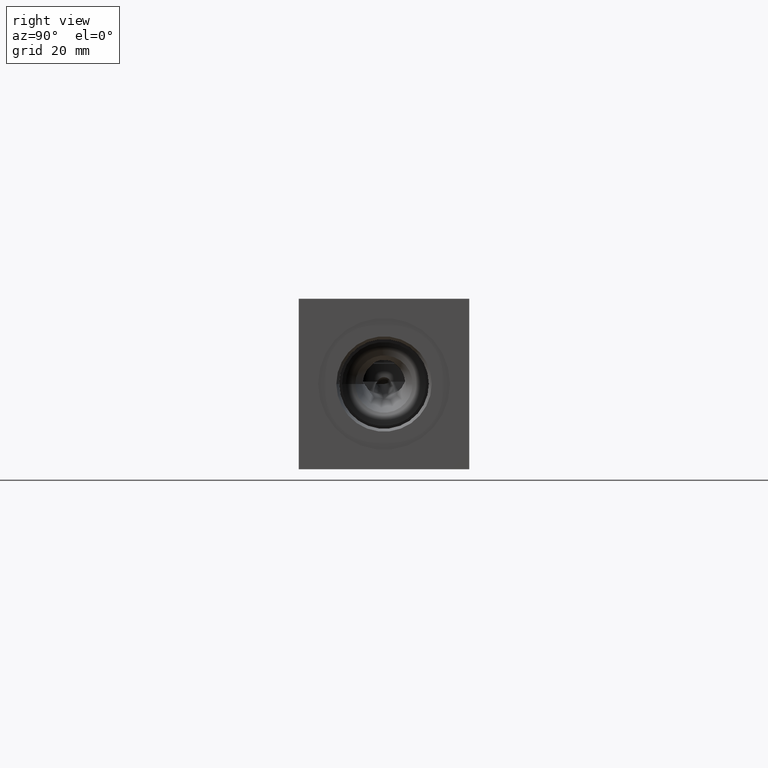
[diagram: clean part render]
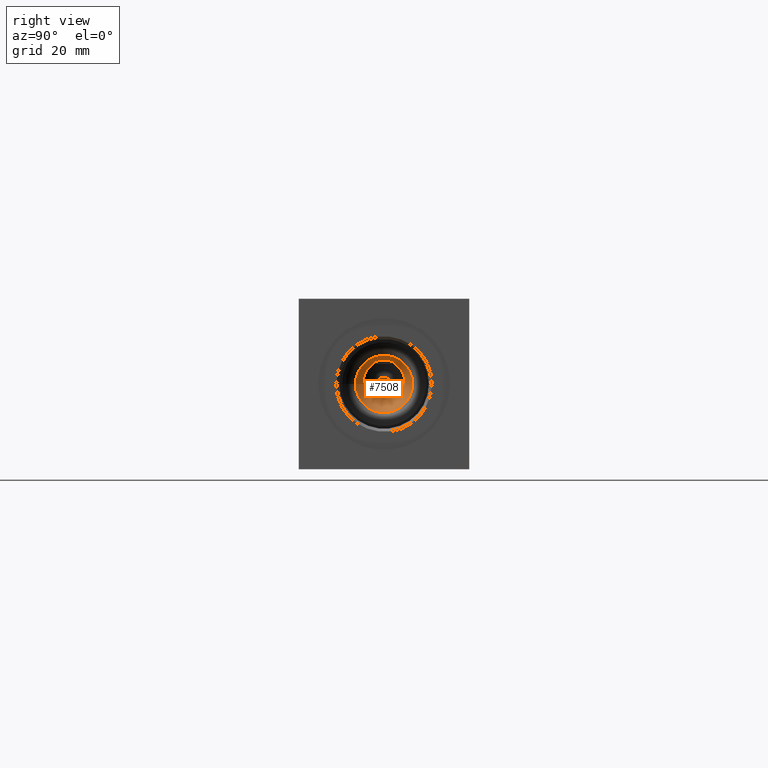
[diagram: same view with one face highlighted and labeled with its STEP entity id]
A machine part, right view. The second image highlights one B-rep face of the part: STEP entity #7508.
In plain terms, the highlighted conical surface has half-angle 15 deg.
Its self-contained STEP definition (entity closure, byte-faithful):
#19=CONICAL_SURFACE('',#7843,8.8773,0.261799387799149);
#97=CIRCLE('',#7819,10.6706221042172);
#222=FACE_BOUND('',#1304,.T.);
#446=B_SPLINE_CURVE_WITH_KNOTS('',3,(#12681,#12682,#12683,#12684),
 .UNSPECIFIED.,.F.,.F.,(4,4),(2.08399057340282,2.27941029707301),
 .UNSPECIFIED.);
#447=B_SPLINE_CURVE_WITH_KNOTS('',3,(#12686,#12687,#12688,#12689,#12690,
#12691,#12692,#12693),.UNSPECIFIED.,.F.,.F.,(4,2,2,4),(1.71928819572178,
1.98408143879271,2.29483396622874,2.51733111841793),.UNSPECIFIED.);
#448=B_SPLINE_CURVE_WITH_KNOTS('',3,(#12695,#12696,#12697,#12698),
 .UNSPECIFIED.,.F.,.F.,(4,4),(0.969717851238545,1.07709659307929),
 .UNSPECIFIED.);
#449=B_SPLINE_CURVE_WITH_KNOTS('',3,(#12700,#12701,#12702,#12703,#12704,
#12705,#12706,#12707,#12708,#12709),.UNSPECIFIED.,.F.,.F.,(4,2,2,2,4),(0.948619671142108,
0.989658449473127,1.338535489643,1.68741252981288,1.7284513081439),
 .UNSPECIFIED.);
#450=B_SPLINE_CURVE_WITH_KNOTS('',3,(#12711,#12712,#12713,#12714),
 .UNSPECIFIED.,.F.,.F.,(4,4),(2.62874377346247,2.73612251530321),
 .UNSPECIFIED.);
#451=B_SPLINE_CURVE_WITH_KNOTS('',3,(#12716,#12717,#12718,#12719,#12720,
#12721,#12722,#12723),.UNSPECIFIED.,.F.,.F.,(4,2,2,4),(0.0882553752468455,
0.310752527436033,0.621505054872067,0.886298297943),.UNSPECIFIED.);
#452=B_SPLINE_CURVE_WITH_KNOTS('',3,(#12725,#12726,#12727,#12728,#12729,
#12730,#12731,#12732,#12733,#12734,#12735,#12736,#12737,#12738,#12739,#12740),
 .UNSPECIFIED.,.F.,.F.,(4,2,2,2,2,2,2,4),(4.9302210835923,5.46971649594333,
5.67910976772348,5.88850303950362,6.05725263641342,6.22600223332322,6.56350142714282,
7.07308323323233),.UNSPECIFIED.);
#453=B_SPLINE_CURVE_WITH_KNOTS('',3,(#12742,#12743,#12744,#12745,#12746,
#12747,#12748,#12749,#12750,#12751,#12752,#12753,#12754,#12755,#12756,#12757,
#12758,#12759),.UNSPECIFIED.,.F.,.F.,(4,2,2,2,2,2,2,2,4),(0.8705508678965,
0.880554992066834,0.978724894753182,1.07615126441196,1.17357763407073,1.2710040037295,
1.36843037338828,1.46660027607462,1.47660440024496),.UNSPECIFIED.);
#454=B_SPLINE_CURVE_WITH_KNOTS('',3,(#12761,#12762,#12763,#12764),
 .UNSPECIFIED.,.F.,.F.,(4,4),(4.02932478603316,4.22685272304285),
 .UNSPECIFIED.);
#455=B_SPLINE_CURVE_WITH_KNOTS('',3,(#12767,#12768,#12769,#12770,#12771,
#12772,#12773,#12774,#12775,#12776,#12777,#12778,#12779,#12780,#12781,#12782),
 .UNSPECIFIED.,.F.,.F.,(4,2,2,2,2,2,2,4),(2.27941029707301,2.59357237949233,
2.93107157331193,3.09982117022173,3.26857076713153,3.47796403891167,3.68735731069182,
4.02932478603316),.UNSPECIFIED.);
#456=B_SPLINE_CURVE_WITH_KNOTS('',3,(#12785,#12786,#12787,#12788,#12789,
#12790,#12791,#12792,#12793,#12794,#12795,#12796),.UNSPECIFIED.,.F.,.F.,
(4,2,2,2,2,4),(0.,0.00953028627284394,0.0190605725456879,0.0310259345487697,
0.0353353979949069,0.0385292272556848),.UNSPECIFIED.);
#457=B_SPLINE_CURVE_WITH_KNOTS('',3,(#12797,#12798,#12799,#12800,#12801,
#12802,#12803,#12804,#12805,#12806,#12807,#12808,#12809,#12810,#12811,#12812,
#12813,#12814,#12815,#12816,#12817,#12818,#12819,#12820,#12821,#12822,#12823,
#12824),.UNSPECIFIED.,.F.,.F.,(4,2,2,2,2,2,2,2,2,2,2,2,2,4),(0.0385292272556848,
0.0417230565164627,0.0460325199625999,0.0579978819656817,0.0675281682385257,
0.0770584545113696,0.0896268539789951,0.102195253446621,0.109982875253717,
0.117770497060813,0.125558118867909,0.133345740675005,0.145914140142631,
0.158482539610256),.UNSPECIFIED.);
#887=FACE_OUTER_BOUND('',#1303,.T.);
#1303=EDGE_LOOP('',(#6353,#6354,#6355,#6356,#6357,#6358,#6359,#6360,#6361,
#6362,#6363,#6364,#6365,#6366,#6367));
#1304=EDGE_LOOP('',(#6368,#6369));
#2044=LINE('',#12679,#2757);
#2045=LINE('',#12766,#2758);
#2757=VECTOR('',#9174,8.8773);
#2758=VECTOR('',#9175,8.8773);
#3399=VERTEX_POINT('',#12630);
#3413=VERTEX_POINT('',#12678);
#3414=VERTEX_POINT('',#12680);
#3415=VERTEX_POINT('',#12685);
#3416=VERTEX_POINT('',#12694);
#3417=VERTEX_POINT('',#12699);
#3418=VERTEX_POINT('',#12710);
#3419=VERTEX_POINT('',#12715);
#3420=VERTEX_POINT('',#12724);
#3421=VERTEX_POINT('',#12741);
#3422=VERTEX_POINT('',#12760);
#3423=VERTEX_POINT('',#12765);
#3424=VERTEX_POINT('',#12783);
#3425=VERTEX_POINT('',#12784);
#4396=EDGE_CURVE('',#3399,#3399,#97,.T.);
#4419=EDGE_CURVE('',#3399,#3413,#2044,.T.);
#4420=EDGE_CURVE('',#3414,#3413,#446,.T.);
#4421=EDGE_CURVE('',#3415,#3414,#447,.T.);
#4422=EDGE_CURVE('',#3415,#3416,#448,.T.);
#4423=EDGE_CURVE('',#3417,#3416,#449,.T.);
#4424=EDGE_CURVE('',#3417,#3418,#450,.T.);
#4425=EDGE_CURVE('',#3419,#3418,#451,.T.);
#4426=EDGE_CURVE('',#3420,#3419,#452,.T.);
#4427=EDGE_CURVE('',#3421,#3420,#453,.T.);
#4428=EDGE_CURVE('',#3422,#3421,#454,.T.);
#4429=EDGE_CURVE('',#3422,#3423,#2045,.T.);
#4430=EDGE_CURVE('',#3413,#3422,#455,.T.);
#4431=EDGE_CURVE('',#3424,#3425,#456,.T.);
#4432=EDGE_CURVE('',#3425,#3424,#457,.T.);
#6353=ORIENTED_EDGE('',*,*,#4396,.T.);
#6354=ORIENTED_EDGE('',*,*,#4419,.T.);
#6355=ORIENTED_EDGE('',*,*,#4420,.F.);
#6356=ORIENTED_EDGE('',*,*,#4421,.F.);
#6357=ORIENTED_EDGE('',*,*,#4422,.T.);
#6358=ORIENTED_EDGE('',*,*,#4423,.F.);
#6359=ORIENTED_EDGE('',*,*,#4424,.T.);
#6360=ORIENTED_EDGE('',*,*,#4425,.F.);
#6361=ORIENTED_EDGE('',*,*,#4426,.F.);
#6362=ORIENTED_EDGE('',*,*,#4427,.F.);
#6363=ORIENTED_EDGE('',*,*,#4428,.F.);
#6364=ORIENTED_EDGE('',*,*,#4429,.T.);
#6365=ORIENTED_EDGE('',*,*,#4429,.F.);
#6366=ORIENTED_EDGE('',*,*,#4430,.F.);
#6367=ORIENTED_EDGE('',*,*,#4419,.F.);
#6368=ORIENTED_EDGE('',*,*,#4431,.F.);
#6369=ORIENTED_EDGE('',*,*,#4432,.F.);
#7508=ADVANCED_FACE('',(#887,#222),#19,.F.);
#7819=AXIS2_PLACEMENT_3D('',#12632,#9116,#9117);
#7843=AXIS2_PLACEMENT_3D('',#12677,#9172,#9173);
#9116=DIRECTION('center_axis',(1.,0.,0.));
#9117=DIRECTION('ref_axis',(0.,1.,0.));
#9172=DIRECTION('center_axis',(1.,0.,0.));
#9173=DIRECTION('ref_axis',(0.,1.,0.));
#9174=DIRECTION('',(-0.965925826289068,0.258819045102521,3.16961915143176E-17));
#9175=DIRECTION('',(-0.965925826289068,0.258819045102521,3.16961915143176E-17));
#12630=CARTESIAN_POINT('',(229.942304573244,21.0793778957828,31.75));
#12632=CARTESIAN_POINT('Origin',(229.942304573244,31.75,31.75));
#12677=CARTESIAN_POINT('Origin',(223.249535365969,31.75,31.75));
#12678=CARTESIAN_POINT('',(217.778448696431,24.3386732548233,31.7500000036756));
#12679=CARTESIAN_POINT('',(223.249535365969,22.8727,31.75));
#12680=CARTESIAN_POINT('',(219.550783144053,23.914475352847,32.64278));
#12681=CARTESIAN_POINT('Ctrl Pts',(219.550783144053,23.914475352847,32.64278));
#12682=CARTESIAN_POINT('Ctrl Pts',(218.953192698748,24.0411718357227,32.3403100950842));
#12683=CARTESIAN_POINT('Ctrl Pts',(218.361977264184,24.1823172466233,32.0422384005173));
#12684=CARTESIAN_POINT('Ctrl Pts',(217.778448696431,24.3386732548233,31.7500000073512));
#12685=CARTESIAN_POINT('',(221.921437406982,27.7719025725673,39.2858896772436));
#12686=CARTESIAN_POINT('Ctrl Pts',(221.921437406982,27.7719025725672,39.2858896772436));
#12687=CARTESIAN_POINT('Ctrl Pts',(221.647300326678,27.0278889555434,38.8100733694728));
#12688=CARTESIAN_POINT('Ctrl Pts',(221.319104121572,26.380282180231,38.2101093975938));
#12689=CARTESIAN_POINT('Ctrl Pts',(220.6469724861,25.2520263112075,36.8115866363937));
#12690=CARTESIAN_POINT('Ctrl Pts',(220.255917207907,24.7345819641982,35.8871651630676));
#12691=CARTESIAN_POINT('Ctrl Pts',(219.764110406081,24.143563041109,34.1615621932986));
#12692=CARTESIAN_POINT('Ctrl Pts',(219.614823437922,23.9833415055276,33.3987629116028));
#12693=CARTESIAN_POINT('Ctrl Pts',(219.550783144053,23.914475352847,32.64278));
#12694=CARTESIAN_POINT('',(222.997757227262,27.974805651411,39.70997));
#12695=CARTESIAN_POINT('Ctrl Pts',(221.921437406982,27.7719025725672,39.2858896772436));
#12696=CARTESIAN_POINT('Ctrl Pts',(222.281349816086,27.8324920258052,39.4269245379381));
#12697=CARTESIAN_POINT('Ctrl Pts',(222.641101053584,27.9000189599347,39.5687316837462));
#12698=CARTESIAN_POINT('Ctrl Pts',(222.997757227262,27.974805651411,39.70997));
#12699=CARTESIAN_POINT('',(222.997757227262,35.525194348589,39.70997));
#12700=CARTESIAN_POINT('Ctrl Pts',(222.997757227262,35.525194348589,39.70997));
#12701=CARTESIAN_POINT('Ctrl Pts',(223.035929794297,35.4051419184832,39.778227917903));
#12702=CARTESIAN_POINT('Ctrl Pts',(223.072733823989,35.2830819714831,39.8434558715089));
#12703=CARTESIAN_POINT('Ctrl Pts',(223.407564971908,34.1061713635657,40.4326785186786));
#12704=CARTESIAN_POINT('Ctrl Pts',(223.5835,32.9129234672329,40.7167855539892));
#12705=CARTESIAN_POINT('Ctrl Pts',(223.5835,30.5870765327671,40.7167855539892));
#12706=CARTESIAN_POINT('Ctrl Pts',(223.407564971908,29.3938286364343,40.4326785186786));
#12707=CARTESIAN_POINT('Ctrl Pts',(223.072733823989,28.2169180285169,39.8434558715089));
#12708=CARTESIAN_POINT('Ctrl Pts',(223.035929794297,28.0948580815168,39.778227917903));
#12709=CARTESIAN_POINT('Ctrl Pts',(222.997757227262,27.974805651411,39.70997));
#12710=CARTESIAN_POINT('',(221.921437406983,35.7280974274328,39.2858896772436));
#12711=CARTESIAN_POINT('Ctrl Pts',(222.997757227262,35.525194348589,39.70997));
#12712=CARTESIAN_POINT('Ctrl Pts',(222.641103695938,35.599980485994,39.5687327301369));
#12713=CARTESIAN_POINT('Ctrl Pts',(222.28134992344,35.6675079561222,39.4269245800058));
#12714=CARTESIAN_POINT('Ctrl Pts',(221.921437406982,35.7280974274327,39.2858896772436));
#12715=CARTESIAN_POINT('',(219.550783144053,39.5855246471531,32.64278));
#12716=CARTESIAN_POINT('Ctrl Pts',(219.550783144053,39.585524647153,32.64278));
#12717=CARTESIAN_POINT('Ctrl Pts',(219.614823437922,39.5166584944724,33.3987629116028));
#12718=CARTESIAN_POINT('Ctrl Pts',(219.764110406081,39.356436958891,34.1615621932986));
#12719=CARTESIAN_POINT('Ctrl Pts',(220.255917207907,38.7654180358019,35.8871651630675));
#12720=CARTESIAN_POINT('Ctrl Pts',(220.6469724861,38.2479736887925,36.8115866363937));
#12721=CARTESIAN_POINT('Ctrl Pts',(221.319104121572,37.119717819769,38.2101093975938));
#12722=CARTESIAN_POINT('Ctrl Pts',(221.647300326678,36.4721110444566,38.8100733694728));
#12723=CARTESIAN_POINT('Ctrl Pts',(221.921437406982,35.7280974274327,39.2858896772436));
#12724=CARTESIAN_POINT('',(199.884573380824,34.2096633894825,32.64278));
#12725=CARTESIAN_POINT('Ctrl Pts',(199.884573380824,34.2096633894824,32.64278));
#12726=CARTESIAN_POINT('Ctrl Pts',(201.385102146563,34.9130662682465,31.8832886181305));
#12727=CARTESIAN_POINT('Ctrl Pts',(203.274913059801,35.2392649234281,30.9299828935149));
#12728=CARTESIAN_POINT('Ctrl Pts',(205.52374835452,35.4298698094869,29.8632582870829));
#12729=CARTESIAN_POINT('Ctrl Pts',(206.217289365734,35.4615782227331,29.5408470435812));
#12730=CARTESIAN_POINT('Ctrl Pts',(207.617589032892,35.5261202255242,28.9616550000783));
#12731=CARTESIAN_POINT('Ctrl Pts',(208.323444611989,35.5588629692908,28.7026831557214));
#12732=CARTESIAN_POINT('Ctrl Pts',(209.540971154971,35.8136025149891,28.4988763727604));
#12733=CARTESIAN_POINT('Ctrl Pts',(210.055315315089,36.0064380696634,28.5153339425403));
#12734=CARTESIAN_POINT('Ctrl Pts',(211.054837887874,36.4669995577866,28.7064278469476));
#12735=CARTESIAN_POINT('Ctrl Pts',(211.546160751328,36.7254647890262,28.8709495220807));
#12736=CARTESIAN_POINT('Ctrl Pts',(213.041119792996,37.4709949313222,29.4444557137841));
#12737=CARTESIAN_POINT('Ctrl Pts',(214.067226095591,37.9264650700353,29.932264238555));
#12738=CARTESIAN_POINT('Ctrl Pts',(216.478743558926,38.8270317343956,31.0925654879605));
#12739=CARTESIAN_POINT('Ctrl Pts',(217.992489985609,39.2551474397941,31.854051218995));
#12740=CARTESIAN_POINT('Ctrl Pts',(219.550783144053,39.585524647153,32.64278));
#12741=CARTESIAN_POINT('',(199.884573380824,29.2903366105175,32.64278));
#12742=CARTESIAN_POINT('Ctrl Pts',(199.884573380824,29.2903366105175,32.64278));
#12743=CARTESIAN_POINT('Ctrl Pts',(199.881795486029,29.3030310983685,32.6755724946629));
#12744=CARTESIAN_POINT('Ctrl Pts',(199.878887290633,29.31642383044,32.7081087727918));
#12745=CARTESIAN_POINT('Ctrl Pts',(199.84616280922,29.4685689718744,33.0566667578014));
#12746=CARTESIAN_POINT('Ctrl Pts',(199.804672913978,29.675319455625,33.3426830080886));
#12747=CARTESIAN_POINT('Ctrl Pts',(199.728681462482,30.1446341048283,33.7888408911566));
#12748=CARTESIAN_POINT('Ctrl Pts',(199.689103745262,30.4382291428422,33.9801054280656));
#12749=CARTESIAN_POINT('Ctrl Pts',(199.633717487301,31.0784985337056,34.2334063350446));
#12750=CARTESIAN_POINT('Ctrl Pts',(199.6186,31.4252454344708,34.2954099522966));
#12751=CARTESIAN_POINT('Ctrl Pts',(199.6186,32.0747545655292,34.2954099522966));
#12752=CARTESIAN_POINT('Ctrl Pts',(199.633717487301,32.4215014662944,34.2334063350446));
#12753=CARTESIAN_POINT('Ctrl Pts',(199.689103745262,33.0617708571578,33.9801054280656));
#12754=CARTESIAN_POINT('Ctrl Pts',(199.728681462482,33.3553658951717,33.7888408911566));
#12755=CARTESIAN_POINT('Ctrl Pts',(199.804672913978,33.8246805443751,33.3426830080885));
#12756=CARTESIAN_POINT('Ctrl Pts',(199.84616280922,34.0314310281256,33.0566667578014));
#12757=CARTESIAN_POINT('Ctrl Pts',(199.878887290633,34.18357616956,32.7081087727918));
#12758=CARTESIAN_POINT('Ctrl Pts',(199.881795486029,34.1969689016315,32.6755724946629));
#12759=CARTESIAN_POINT('Ctrl Pts',(199.884573380824,34.2096633894825,32.64278));
#12760=CARTESIAN_POINT('',(201.65690787759,28.6584270979772,31.7499999913695));
#12761=CARTESIAN_POINT('Ctrl Pts',(201.65690787759,28.6584270979772,31.7499999827389));
#12762=CARTESIAN_POINT('Ctrl Pts',(201.035571798546,28.824913596848,32.0611728495351));
#12763=CARTESIAN_POINT('Ctrl Pts',(200.433968880275,29.0327964788537,32.3647039266863));
#12764=CARTESIAN_POINT('Ctrl Pts',(199.884573380824,29.2903366105175,32.64278));
#12765=CARTESIAN_POINT('',(190.119000731938,31.75,31.75));
#12766=CARTESIAN_POINT('',(223.249535365969,22.8727,31.75));
#12767=CARTESIAN_POINT('Ctrl Pts',(217.778448696431,24.3386732548233,31.7500000073512));
#12768=CARTESIAN_POINT('Ctrl Pts',(216.840352241511,24.5900354418755,31.2801895888547));
#12769=CARTESIAN_POINT('Ctrl Pts',(215.922411783852,24.880727014431,30.8248865416055));
#12770=CARTESIAN_POINT('Ctrl Pts',(214.067226095591,25.5735349299647,29.932264238555));
#12771=CARTESIAN_POINT('Ctrl Pts',(213.041119792996,26.0290050686778,29.4444557137841));
#12772=CARTESIAN_POINT('Ctrl Pts',(211.546160751328,26.7745352109738,28.8709495220807));
#12773=CARTESIAN_POINT('Ctrl Pts',(211.054837887874,27.0330004422134,28.7064278469476));
#12774=CARTESIAN_POINT('Ctrl Pts',(210.055315315089,27.4935619303366,28.5153339425403));
#12775=CARTESIAN_POINT('Ctrl Pts',(209.540971154971,27.6863974850109,28.4988763727604));
#12776=CARTESIAN_POINT('Ctrl Pts',(208.323444611989,27.9411370307092,28.7026831557214));
#12777=CARTESIAN_POINT('Ctrl Pts',(207.617589032892,27.9738797744758,28.9616550000783));
#12778=CARTESIAN_POINT('Ctrl Pts',(206.217289365734,28.0384217772669,29.5408470435812));
#12779=CARTESIAN_POINT('Ctrl Pts',(205.52374835452,28.0701301905131,29.8632582870829));
#12780=CARTESIAN_POINT('Ctrl Pts',(203.86806903325,28.2104608626267,30.6486221047477));
#12781=CARTESIAN_POINT('Ctrl Pts',(202.732587265051,28.3701996777999,31.2112863138576));
#12782=CARTESIAN_POINT('Ctrl Pts',(201.65690787759,28.6584270979772,31.7499999827389));
#12783=CARTESIAN_POINT('',(210.990664084048,31.9990768440167,26.1630040178532));
#12784=CARTESIAN_POINT('',(210.731004611895,31.75,26.2270302059781));
#12785=CARTESIAN_POINT('Ctrl Pts',(210.990664084048,31.9990768440167,26.1630040178532));
#12786=CARTESIAN_POINT('Ctrl Pts',(210.959978918572,31.9987106554649,26.1712179245906));
#12787=CARTESIAN_POINT('Ctrl Pts',(210.926865093647,31.9931848796776,26.179842354178));
#12788=CARTESIAN_POINT('Ctrl Pts',(210.864970154154,31.9699865013821,26.1954791034492));
#12789=CARTESIAN_POINT('Ctrl Pts',(210.836136209608,31.9524713350183,26.202515425346));
#12790=CARTESIAN_POINT('Ctrl Pts',(210.783593436189,31.9053975425572,26.2150592361414));
#12791=CARTESIAN_POINT('Ctrl Pts',(210.757055686438,31.866033927873,26.2211396870293));
#12792=CARTESIAN_POINT('Ctrl Pts',(210.739463399798,31.8148713967814,26.2251279490825));
#12793=CARTESIAN_POINT('Ctrl Pts',(210.735428280192,31.7981371135762,26.2260363424301));
#12794=CARTESIAN_POINT('Ctrl Pts',(210.731907188267,31.773387884231,26.2268278368526));
#12795=CARTESIAN_POINT('Ctrl Pts',(210.731004611895,31.7606460975359,26.2270302059781));
#12796=CARTESIAN_POINT('Ctrl Pts',(210.731004611895,31.75,26.2270302059781));
#12797=CARTESIAN_POINT('Ctrl Pts',(210.731004611895,31.75,26.2270302059781));
#12798=CARTESIAN_POINT('Ctrl Pts',(210.731004611895,31.7393539024641,26.2270302059781));
#12799=CARTESIAN_POINT('Ctrl Pts',(210.731907188267,31.726612115769,26.2268278368526));
#12800=CARTESIAN_POINT('Ctrl Pts',(210.735428280192,31.7018628864238,26.2260363424301));
#12801=CARTESIAN_POINT('Ctrl Pts',(210.739463399798,31.6851286032186,26.2251279490825));
#12802=CARTESIAN_POINT('Ctrl Pts',(210.757055686438,31.633966072127,26.2211396870293));
#12803=CARTESIAN_POINT('Ctrl Pts',(210.783593436189,31.5946024574428,26.2150592361414));
#12804=CARTESIAN_POINT('Ctrl Pts',(210.836136209608,31.5475286649817,26.202515425346));
#12805=CARTESIAN_POINT('Ctrl Pts',(210.864970154154,31.5300134986179,26.1954791034492));
#12806=CARTESIAN_POINT('Ctrl Pts',(210.926865093647,31.5068151203224,26.179842354178));
#12807=CARTESIAN_POINT('Ctrl Pts',(210.959978918572,31.5012893445351,26.1712179245906));
#12808=CARTESIAN_POINT('Ctrl Pts',(211.031131222851,31.5004402319801,26.1521716400936));
#12809=CARTESIAN_POINT('Ctrl Pts',(211.074098842477,31.5088197150086,26.1402524832905));
#12810=CARTESIAN_POINT('Ctrl Pts',(211.152169806858,31.5434546308966,26.1179374467653));
#12811=CARTESIAN_POINT('Ctrl Pts',(211.187295820813,31.5696698832494,26.1075585404399));
#12812=CARTESIAN_POINT('Ctrl Pts',(211.229919518807,31.6208963723997,26.0947854575377));
#12813=CARTESIAN_POINT('Ctrl Pts',(211.244496587917,31.6447825189117,26.0903580836653));
#12814=CARTESIAN_POINT('Ctrl Pts',(211.264061978916,31.6963320303584,26.0843947312538));
#12815=CARTESIAN_POINT('Ctrl Pts',(211.268939115939,31.724041260643,26.0828910900387));
#12816=CARTESIAN_POINT('Ctrl Pts',(211.268939115939,31.775958739357,26.0828910900387));
#12817=CARTESIAN_POINT('Ctrl Pts',(211.264061978916,31.8036679696416,26.0843947312538));
#12818=CARTESIAN_POINT('Ctrl Pts',(211.244496587917,31.8552174810883,26.0903580836653));
#12819=CARTESIAN_POINT('Ctrl Pts',(211.229919518807,31.8791036276003,26.0947854575377));
#12820=CARTESIAN_POINT('Ctrl Pts',(211.187295820813,31.9303301167506,26.1075585404399));
#12821=CARTESIAN_POINT('Ctrl Pts',(211.152169806858,31.9565453691034,26.1179374467653));
#12822=CARTESIAN_POINT('Ctrl Pts',(211.074098842477,31.9911802849914,26.1402524832905));
#12823=CARTESIAN_POINT('Ctrl Pts',(211.031131222851,31.9995597680199,26.1521716400936));
#12824=CARTESIAN_POINT('Ctrl Pts',(210.990664084048,31.9990768440167,26.1630040178532));